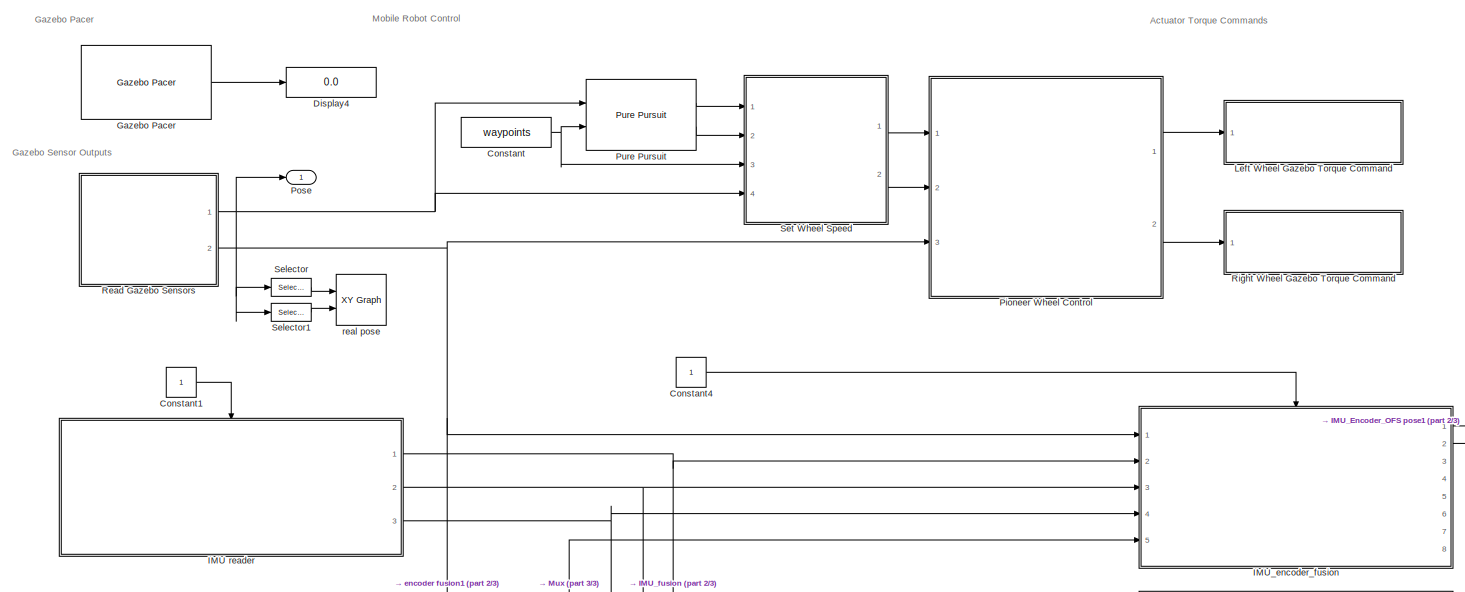
[diagram: root canvas - part 1/3, full width, top band]
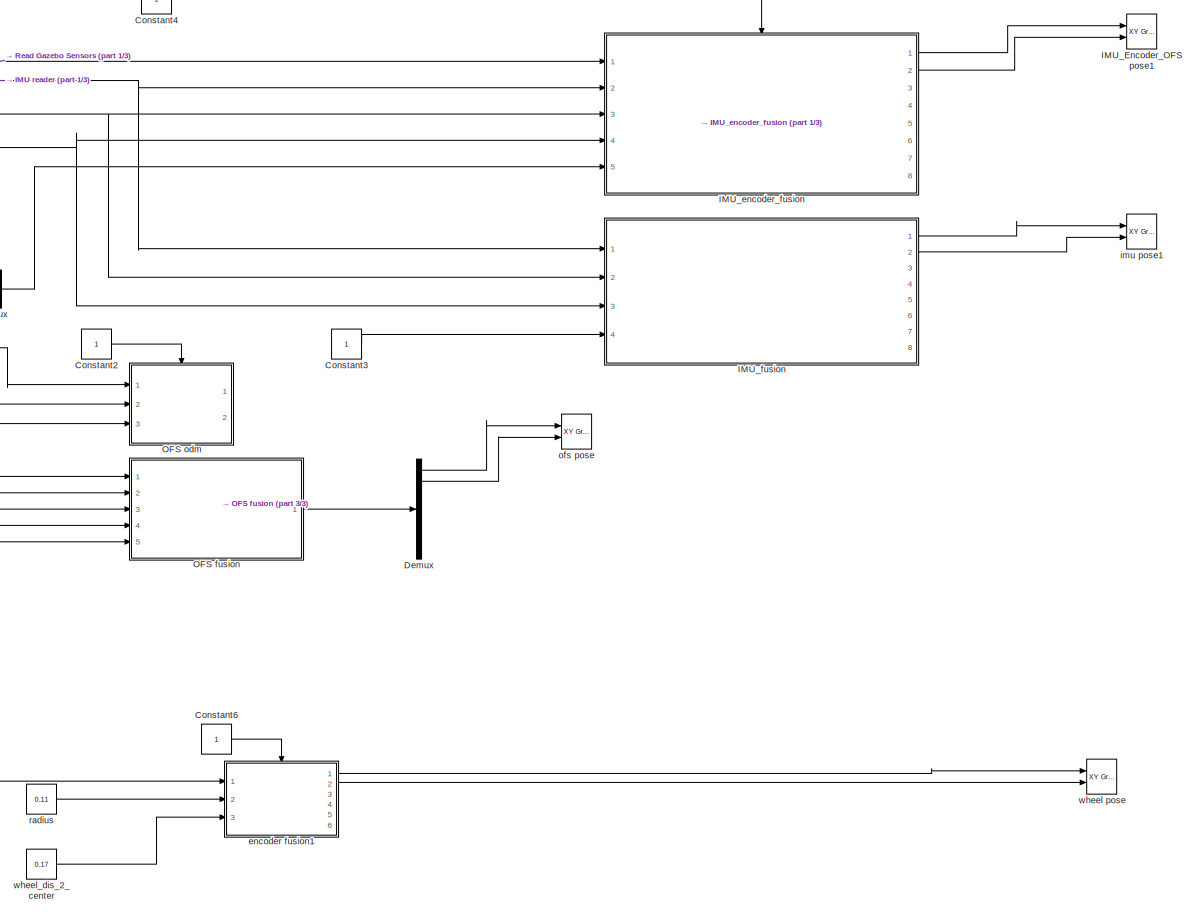
[diagram: root canvas - part 2/3, central region]
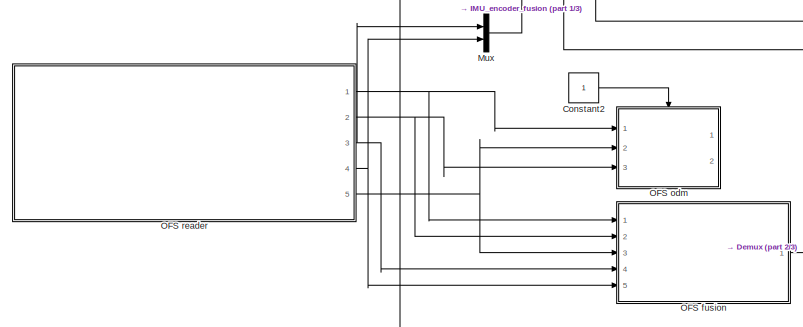
[diagram: root canvas - part 3/3, middle left region]
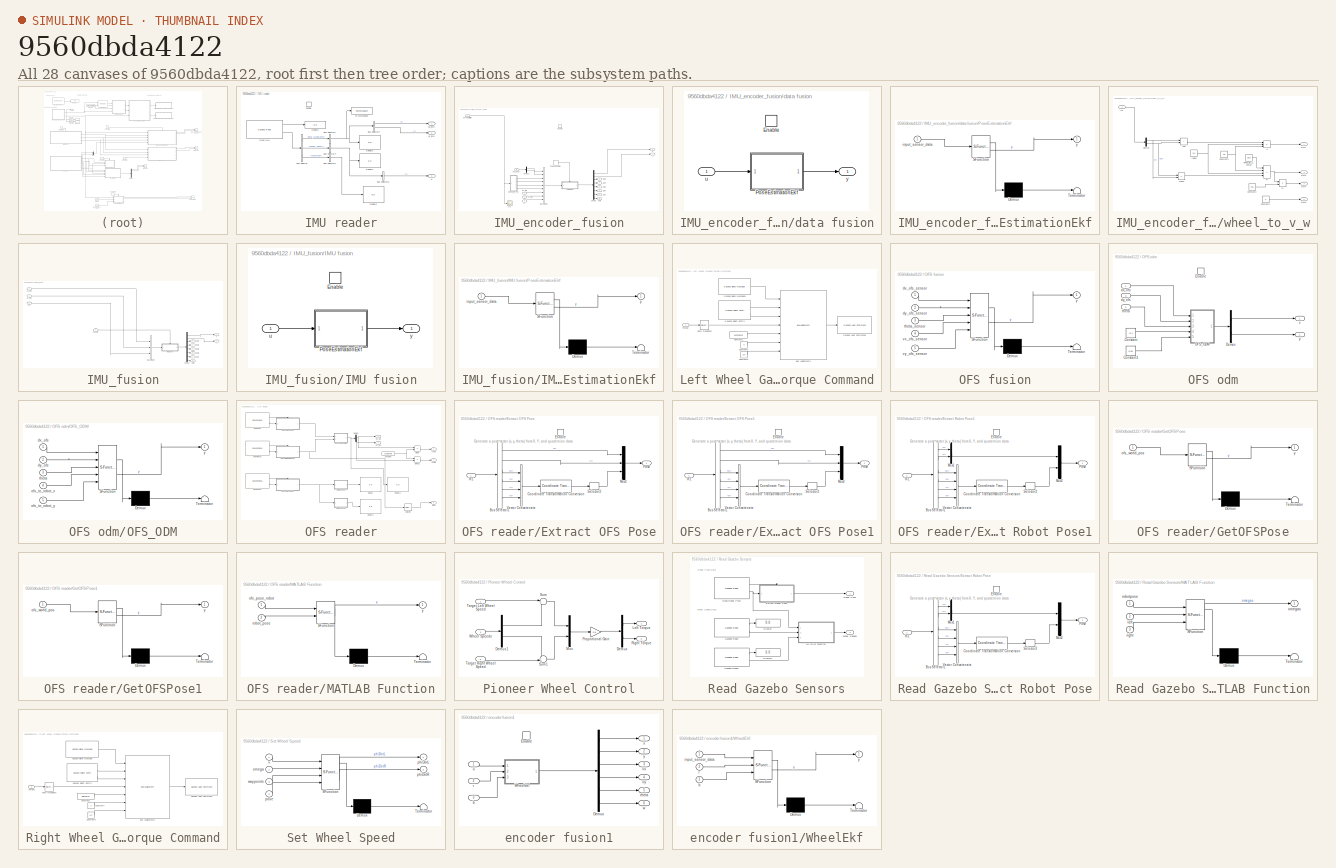
[diagram: thumbnail index - all 28 canvases of the model, root first then tree order]
MODEL slx_9560dbda4122
KIND model
CONFIG AbsTol = auto
CONFIG EnableMultiTasking = off
CONFIG FixedStep = auto
CONFIG MaxStep = auto
CONFIG MinStep = auto
CONFIG RelTol = 1e-3
CONFIG SampleTimeConstraint = Unconstrained
CONFIG SolverName = VariableStepAuto
CONFIG StartTime = 0.0
CONFIG StopTime = 10.0
WORKSPACE source: mxarray member
WORKSPACE f = -1
BLOCK [Constant] Constant
  Value = waypoints
BLOCK [Constant] Constant1
BLOCK [Constant] Constant2
BLOCK [Constant] Constant3
BLOCK [Constant] Constant4
BLOCK [Constant] Constant6
BLOCK [Demux] Demux
  Outputs = 8
  Ports = [1, 8]
BLOCK [Display] Display4
  Decimation = 1
  Ports = [1]
BLOCK [Reference] Gazebo Pacer  REF=robotgazebolib/Gazebo Pacer
  Ports = [0, 1]
  SourceBlock = robotgazebolib/Gazebo Pacer
  SourceProductName = Robotics System Toolbox
  SourceType = Gazebo Pacer
BLOCK [SubSystem] IMU reader
  Ports = [0, 3, 1]
  RequestExecContextInheritance = off
BLOCK [BusSelector] IMU reader/Bus Selector
  OutputSignals = linear_acceleration,angular_velocity,orientation
  Ports = [1, 3]
BLOCK [BusSelector] IMU reader/Bus Selector1
  OutputAsBus = on
  OutputSignals = x,y,z
  Ports = [1, 1]
BLOCK [BusSelector] IMU reader/Bus Selector2
  OutputAsBus = on
  OutputSignals = x,y,z
  Ports = [1, 1]
BLOCK [BusSelector] IMU reader/Bus Selector3
  OutputAsBus = on
  OutputSignals = w,x,y,z
  Ports = [1, 1]
BLOCK [BusSelector] IMU reader/Bus Selector4
  OutputSignals = x,y
  Ports = [1, 2]
BLOCK [BusSelector] IMU reader/Bus Selector5
  OutputSignals = z
  Ports = [1, 1]
BLOCK [Display] IMU reader/Display1
  Decimation = 1
  Ports = [1]
BLOCK [Display] IMU reader/Display2
  Decimation = 3
  Ports = [1]
BLOCK [Display] IMU reader/Display3
  Decimation = 3
  Ports = [1]
BLOCK [Display] IMU reader/Display4
  Decimation = 3
  Ports = [1]
BLOCK [EnablePort] IMU reader/Enable
  Ports = []
BLOCK [Reference] IMU reader/Read IMU  REF=robotgazebolib/Gazebo Read
  Ports = [0, 2]
  SourceBlock = robotgazebolib/Gazebo Read
  SourceProductName = Robotics System Toolbox
  SourceType = Gazebo Read
BLOCK [ToWorkspace] IMU reader/To Workspace
  Decimation = 3
  FixptAsFi = on
  MaxDataPoints = inf
  Ports = [1]
  SampleTime = -1
  SaveFormat = Timeseries
  VariableName = acc
BLOCK [Outport] IMU reader/ax_imu
BLOCK [Outport] IMU reader/ay_imu
  Port = 2
BLOCK [Outport] IMU reader/w
  Port = 3
BLOCK [Reference] IMU_Encoder_OFS pose1  REF=simulink/Sinks/XY Graph
  Ports = [2]
  SourceBlock = simulink/Sinks/XY Graph
  SourceProductBaseCode = SL
  SourceType = XY scope.
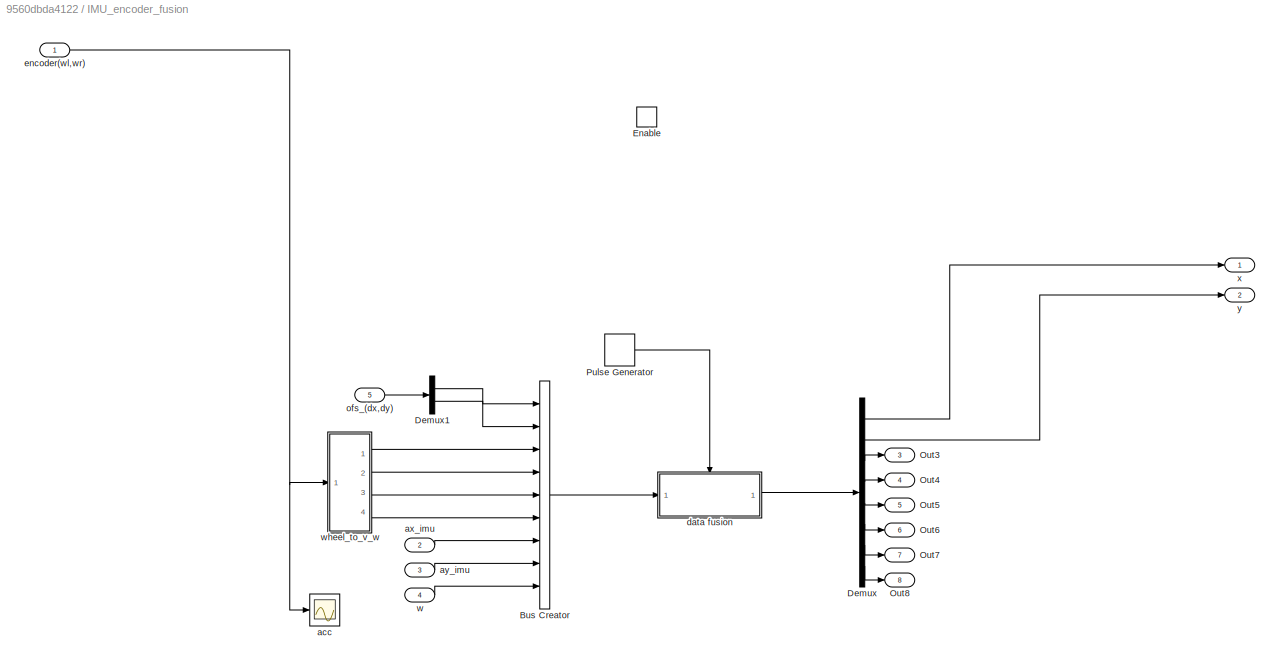
BLOCK [SubSystem] IMU_encoder_fusion
  Ports = [5, 8, 1]
  RequestExecContextInheritance = off
BLOCK [BusCreator] IMU_encoder_fusion/Bus Creator
  DisplayOption = bar
  InheritFromInputs = on
  Inputs = 9
  Ports = [9, 1]
BLOCK [Demux] IMU_encoder_fusion/Demux
  Outputs = 8
  Ports = [1, 8]
BLOCK [Demux] IMU_encoder_fusion/Demux1
  Outputs = 2
  Ports = [1, 2]
BLOCK [EnablePort] IMU_encoder_fusion/Enable
  Ports = []
BLOCK [Outport] IMU_encoder_fusion/Out3
  Port = 3
BLOCK [Outport] IMU_encoder_fusion/Out4
  Port = 4
BLOCK [Outport] IMU_encoder_fusion/Out5
  Port = 5
BLOCK [Outport] IMU_encoder_fusion/Out6
  Port = 6
BLOCK [Outport] IMU_encoder_fusion/Out7
  Port = 7
BLOCK [Outport] IMU_encoder_fusion/Out8
  Port = 8
BLOCK [DiscretePulseGenerator] IMU_encoder_fusion/Pulse Generator
  Period = 0.01
  Ports = [0, 1]
  PulseType = Time based
  PulseWidth = 50
BLOCK [Scope] IMU_encoder_fusion/acc
  Floating = off
  NumInputPorts = 1
  Ports = [1]
  ScopeSpecificationString = Simulink.scopes.TimeScopeBlockCfg('CurrentConfiguration', extmgr.ConfigurationSet(extmgr.Configuration('Core','General UI',true),extmgr.Configuration('Core','Source UI',true),extmgr.Configuration('Sources','WiredSimulink',true,'DataLoggingVariableName','ScopeData1'),extmgr.Configuration('Visuals','Time Domain',true,'SerializedDisplays',{struct('MinYLimReal','-0.27519','MaxYLimReal','12.50547','YLa...<+1425ch>
BLOCK [Inport] IMU_encoder_fusion/ax_imu
  Port = 2
BLOCK [Inport] IMU_encoder_fusion/ay_imu
  Port = 3
BLOCK [SubSystem] IMU_encoder_fusion/data fusion
  Ports = [1, 1, 1]
  RequestExecContextInheritance = off
  TreatAsAtomicUnit = on
BLOCK [EnablePort] IMU_encoder_fusion/data fusion/Enable
  Ports = []
BLOCK [SubSystem] IMU_encoder_fusion/data fusion/PoseEstimationEkf
  ErrorFcn = Stateflow.Translate.translate
  PermitHierarchicalResolution = ExplicitOnly
  Ports = [1, 1]
  RequestExecContextInheritance = off
  SFBlockType = MATLAB Function
  TreatAsAtomicUnit = on
BLOCK [Demux] IMU_encoder_fusion/data fusion/PoseEstimationEkf/ Demux 
  Outputs = 1
  Ports = [1, 1]
BLOCK [S-Function] IMU_encoder_fusion/data fusion/PoseEstimationEkf/ SFunction 
  EnableBusSupport = on
  FunctionName = sf_sfun
  PortCounts = [1 2]
  Ports = [1, 2]
  SFcnIsStateOwnerBlock = off
  SFunctionDeploymentMode = off
  Tag = Stateflow S-Function 3
BLOCK [Terminator] IMU_encoder_fusion/data fusion/PoseEstimationEkf/ Terminator 
BLOCK [Inport] IMU_encoder_fusion/data fusion/PoseEstimationEkf/input_sensor_data
BLOCK [Outport] IMU_encoder_fusion/data fusion/PoseEstimationEkf/y
BLOCK [Inport] IMU_encoder_fusion/data fusion/u
BLOCK [Outport] IMU_encoder_fusion/data fusion/y
BLOCK [Inport] IMU_encoder_fusion/encoder(wl,wr)
BLOCK [Inport] IMU_encoder_fusion/ofs_(dx,dy)
  Port = 5
BLOCK [Inport] IMU_encoder_fusion/w
  Port = 4
BLOCK [SubSystem] IMU_encoder_fusion/wheel_to_v_w
  Ports = [1, 4]
  RequestExecContextInheritance = off
BLOCK [Sum] IMU_encoder_fusion/wheel_to_v_w/Add
  IconShape = rectangular
  Ports = [2, 1]
BLOCK [Constant] IMU_encoder_fusion/wheel_to_v_w/Constant1
  Value = 0
BLOCK [Constant] IMU_encoder_fusion/wheel_to_v_w/Constant2
  Value = 0.01
BLOCK [Constant] IMU_encoder_fusion/wheel_to_v_w/Constant3
  Value = 0.5
BLOCK [Demux] IMU_encoder_fusion/wheel_to_v_w/Demux
  Outputs = 2
  Ports = [1, 2]
BLOCK [Inport] IMU_encoder_fusion/wheel_to_v_w/In1
BLOCK [Sum] IMU_encoder_fusion/wheel_to_v_w/Minus
  IconShape = rectangular
  Inputs = +-
  Ports = [2, 1]
BLOCK [Outport] IMU_encoder_fusion/wheel_to_v_w/Out1
BLOCK [Outport] IMU_encoder_fusion/wheel_to_v_w/Out2
  Port = 4
BLOCK [Outport] IMU_encoder_fusion/wheel_to_v_w/Out3
  Port = 2
BLOCK [Outport] IMU_encoder_fusion/wheel_to_v_w/Out4
  Port = 3
BLOCK [Constant] IMU_encoder_fusion/wheel_to_v_w/radius
  Value = 0.11
BLOCK [Product] IMU_encoder_fusion/wheel_to_v_w/v
  Inputs = 3
  Ports = [3, 1]
BLOCK [Product] IMU_encoder_fusion/wheel_to_v_w/v1
  Ports = [2, 1]
BLOCK [Product] IMU_encoder_fusion/wheel_to_v_w/w
  Inputs = 4
  Ports = [4, 1]
BLOCK [Constant] IMU_encoder_fusion/wheel_to_v_w/wheel_dis_2_center
  Value = 1/0.17
BLOCK [Outport] IMU_encoder_fusion/x
BLOCK [Outport] IMU_encoder_fusion/y
  Port = 2
BLOCK [SubSystem] IMU_fusion
  Ports = [4, 8]
  RequestExecContextInheritance = off
BLOCK [BusCreator] IMU_fusion/Bus Creator
  DisplayOption = bar
  InheritFromInputs = on
  Inputs = 3
  Ports = [3, 1]
BLOCK [Demux] IMU_fusion/Demux
  Outputs = 8
  Ports = [1, 8]
BLOCK [Inport] IMU_fusion/Enable
  Port = 4
BLOCK [SubSystem] IMU_fusion/IMU fusion
  Ports = [1, 1, 1]
  RequestExecContextInheritance = off
  TreatAsAtomicUnit = on
BLOCK [EnablePort] IMU_fusion/IMU fusion/Enable
  Ports = []
BLOCK [SubSystem] IMU_fusion/IMU fusion/PoseEstimationEkf
  ErrorFcn = Stateflow.Translate.translate
  PermitHierarchicalResolution = ExplicitOnly
  Ports = [1, 1]
  RequestExecContextInheritance = off
  SFBlockType = MATLAB Function
  TreatAsAtomicUnit = on
BLOCK [Demux] IMU_fusion/IMU fusion/PoseEstimationEkf/ Demux 
  Outputs = 1
  Ports = [1, 1]
BLOCK [S-Function] IMU_fusion/IMU fusion/PoseEstimationEkf/ SFunction 
  EnableBusSupport = on
  FunctionName = sf_sfun
  PortCounts = [1 2]
  Ports = [1, 2]
  SFcnIsStateOwnerBlock = off
  SFunctionDeploymentMode = off
  Tag = Stateflow S-Function 5
BLOCK [Terminator] IMU_fusion/IMU fusion/PoseEstimationEkf/ Terminator 
BLOCK [Inport] IMU_fusion/IMU fusion/PoseEstimationEkf/input_sensor_data
BLOCK [Outport] IMU_fusion/IMU fusion/PoseEstimationEkf/y
BLOCK [Inport] IMU_fusion/IMU fusion/u
BLOCK [Outport] IMU_fusion/IMU fusion/y
BLOCK [Outport] IMU_fusion/Out3
  Port = 3
BLOCK [Outport] IMU_fusion/Out4
  Port = 4
BLOCK [Outport] IMU_fusion/Out5
  Port = 5
BLOCK [Outport] IMU_fusion/Out6
  Port = 6
BLOCK [Outport] IMU_fusion/Out7
  Port = 7
BLOCK [Outport] IMU_fusion/Out8
  Port = 8
BLOCK [Inport] IMU_fusion/ax_imu
BLOCK [Inport] IMU_fusion/ay_imu
  Port = 2
BLOCK [Inport] IMU_fusion/w
  Port = 3
BLOCK [Outport] IMU_fusion/x
BLOCK [Outport] IMU_fusion/y
  Port = 2
BLOCK [SubSystem] Left Wheel Gazebo Torque Command
  Ports = [1]
  RequestExecContextInheritance = off
BLOCK [BusAssignment] Left Wheel Gazebo Torque Command/Bus Assignment1
  AssignedSignals = model_name,joint_name,effort,index,duration.seconds,duration.nano_seconds
  Ports = [7, 1]
BLOCK [Constant] Left Wheel Gazebo Torque Command/Constant1
  Value = uint32(0)
BLOCK [Constant] Left Wheel Gazebo Torque Command/Constant4
  Value = 0
BLOCK [Constant] Left Wheel Gazebo Torque Command/Constant5
  Value = 1e7
BLOCK [Reference] Left Wheel Gazebo Torque Command/Gazebo Apply Command1  REF=robotgazebolib/Gazebo Apply Command
  Ports = [1]
  SourceBlock = robotgazebolib/Gazebo Apply Command
  SourceProductName = Robotics System Toolbox
  SourceType = Gazebo Apply Command
BLOCK [Reference] Left Wheel Gazebo Torque Command/Gazebo Blank Message1  REF=robotgazebolib/Gazebo Blank Message
  Ports = [0, 1]
  SourceBlock = robotgazebolib/Gazebo Blank Message
  SourceProductName = Robotics System Toolbox
  SourceType = Gazebo Blank Message
BLOCK [Reference] Left Wheel Gazebo Torque Command/Gazebo Select Entity1  REF=robotgazebolib/Gazebo Select Entity
  Ports = [0, 2]
  SourceBlock = robotgazebolib/Gazebo Select Entity
  SourceProductName = Robotics System Toolbox
  SourceType = Gazebo Select Entity
BLOCK [RateTransition] Left Wheel Gazebo Torque Command/Rate Transition2
BLOCK [Inport] Left Wheel Gazebo Torque Command/Torque
BLOCK [Mux] Mux
  DisplayOption = bar
  Inputs = 2
  Ports = [2, 1]
BLOCK [SubSystem] OFS fusion
  ErrorFcn = Stateflow.Translate.translate
  PermitHierarchicalResolution = ExplicitOnly
  Ports = [5, 1]
  RequestExecContextInheritance = off
  SFBlockType = MATLAB Function
  TreatAsAtomicUnit = on
BLOCK [Demux] OFS fusion/ Demux 
  Outputs = 1
  Ports = [1, 1]
BLOCK [S-Function] OFS fusion/ SFunction 
  EnableBusSupport = on
  FunctionName = sf_sfun
  PortCounts = [5 2]
  Ports = [5, 2]
  SFcnIsStateOwnerBlock = off
  SFunctionDeploymentMode = off
  Tag = Stateflow S-Function 7
BLOCK [Terminator] OFS fusion/ Terminator 
BLOCK [Inport] OFS fusion/dx_ofs_sensor
BLOCK [Inport] OFS fusion/dy_ofs_sensor
  Port = 2
BLOCK [Inport] OFS fusion/theta_sensor
  Port = 3
BLOCK [Inport] OFS fusion/vx_ofs_sensor
  Port = 4
BLOCK [Inport] OFS fusion/vy_ofs_sensor
  Port = 5
BLOCK [Outport] OFS fusion/y
BLOCK [SubSystem] OFS odm
  Ports = [3, 2, 1]
  RequestExecContextInheritance = off
BLOCK [Constant] OFS odm/Constant
  Value = -0.1
BLOCK [Constant] OFS odm/Constant1
  Value = 0.05
BLOCK [Demux] OFS odm/Demux
  Outputs = 2
  Ports = [1, 2]
BLOCK [EnablePort] OFS odm/Enable
  Ports = []
BLOCK [SubSystem] OFS odm/OFS_ODM
  ErrorFcn = Stateflow.Translate.translate
  PermitHierarchicalResolution = ExplicitOnly
  Ports = [5, 1]
  RequestExecContextInheritance = off
  SFBlockType = MATLAB Function
  TreatAsAtomicUnit = on
BLOCK [Demux] OFS odm/OFS_ODM/ Demux 
  Outputs = 1
  Ports = [1, 1]
BLOCK [S-Function] OFS odm/OFS_ODM/ SFunction 
  EnableBusSupport = on
  FunctionName = sf_sfun
  PortCounts = [5 2]
  Ports = [5, 2]
  SFcnIsStateOwnerBlock = off
  SFunctionDeploymentMode = off
  Tag = Stateflow S-Function 6
BLOCK [Terminator] OFS odm/OFS_ODM/ Terminator 
BLOCK [Inport] OFS odm/OFS_ODM/dx_ofs
BLOCK [Inport] OFS odm/OFS_ODM/dy_ofs
  Port = 2
BLOCK [Inport] OFS odm/OFS_ODM/ofs_to_robot_x
  Port = 4
BLOCK [Inport] OFS odm/OFS_ODM/ofs_to_robot_y
  Port = 5
BLOCK [Inport] OFS odm/OFS_ODM/theta
  Port = 3
BLOCK [Outport] OFS odm/OFS_ODM/y
BLOCK [Inport] OFS odm/dx_ofs
BLOCK [Inport] OFS odm/dy_ofs
  Port = 3
BLOCK [Inport] OFS odm/theta
  Port = 2
BLOCK [Outport] OFS odm/x
BLOCK [Outport] OFS odm/y
  Port = 2
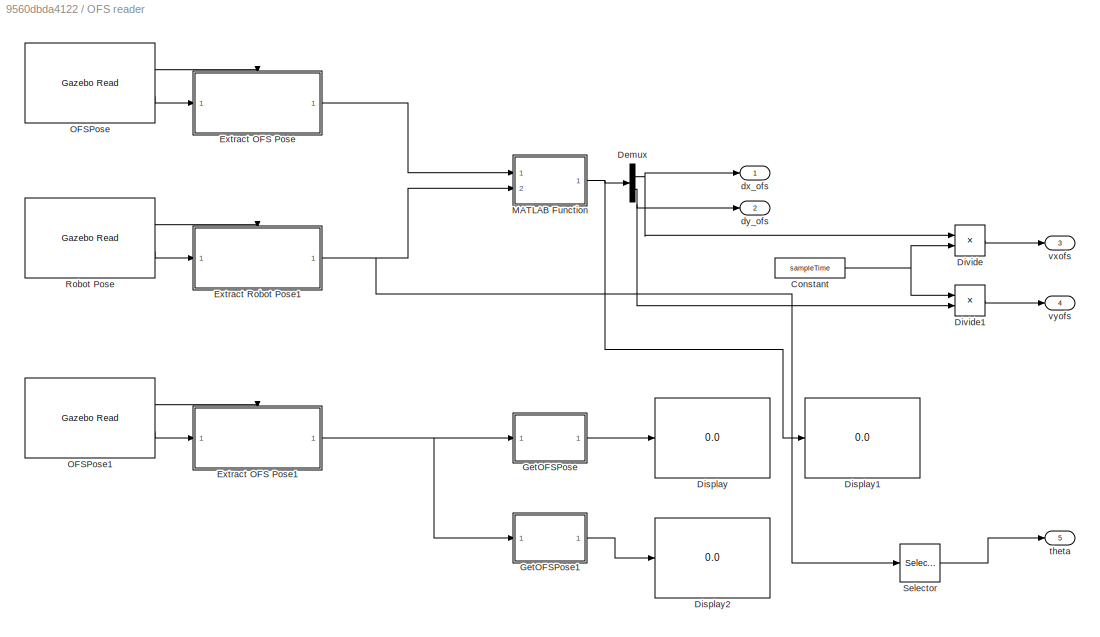
BLOCK [SubSystem] OFS reader
  Ports = [0, 5]
  RequestExecContextInheritance = off
BLOCK [Constant] OFS reader/Constant
  Value = sampleTime
BLOCK [Demux] OFS reader/Demux
  Outputs = 2
  Ports = [1, 2]
BLOCK [Display] OFS reader/Display
  Decimation = 3
  Ports = [1]
BLOCK [Display] OFS reader/Display1
  Decimation = 3
  Ports = [1]
BLOCK [Display] OFS reader/Display2
  Decimation = 3
  Ports = [1]
BLOCK [Product] OFS reader/Divide
  Inputs = */
  Ports = [2, 1]
BLOCK [Product] OFS reader/Divide1
  Inputs = /*
  Ports = [2, 1]
BLOCK [SubSystem] OFS reader/Extract OFS Pose
  Ports = [1, 1, 1]
  RequestExecContextInheritance = off
BLOCK [BusSelector] OFS reader/Extract OFS Pose/Bus Selector1
  OutputSignals = relative_pose.position.x,relative_pose.position.y,relative_pose.orientation.w,relative_pose.orientation.x,relative_pose.orientation.y,relative_pose.orientation.z
  Ports = [1, 6]
BLOCK [Reference] OFS reader/Extract OFS Pose/Coordinate Transformation Conversion  REF=robotcorelib/Coordinate Transformation Conversion
  Ports = [1, 1]
  SourceBlock = robotcorelib/Coordinate Transformation Conversion
  SourceProductName = Robotics System Toolbox
  SourceType = robotics.slcore.internal.block.CoordinateTransformationConversion
BLOCK [EnablePort] OFS reader/Extract OFS Pose/Enable
  Ports = []
BLOCK [Inport] OFS reader/Extract OFS Pose/In1
BLOCK [Mux] OFS reader/Extract OFS Pose/Mux2
  DisplayOption = bar
  Inputs = 3
  Ports = [3, 1]
BLOCK [Outport] OFS reader/Extract OFS Pose/Pose
  VectorParamsAs1DForOutWhenUnconnected = off
BLOCK [Selector] OFS reader/Extract OFS Pose/Selector2
  IndexOptions = Index vector (dialog)
  Indices = 1
  InputPortWidth = 3
  OutputSizes = 1
  Ports = [1, 1]
BLOCK [Concatenate] OFS reader/Extract OFS Pose/Vector Concatenate
  NumInputs = 4
  Ports = [4, 1]
BLOCK [SubSystem] OFS reader/Extract OFS Pose1
  Ports = [1, 1, 1]
  RequestExecContextInheritance = off
BLOCK [BusSelector] OFS reader/Extract OFS Pose1/Bus Selector1
  OutputSignals = position.x,position.y,orientation.w,orientation.x,orientation.y,orientation.z
  Ports = [1, 6]
BLOCK [Reference] OFS reader/Extract OFS Pose1/Coordinate Transformation Conversion  REF=robotcorelib/Coordinate Transformation Conversion
  Ports = [1, 1]
  SourceBlock = robotcorelib/Coordinate Transformation Conversion
  SourceProductName = Robotics System Toolbox
  SourceType = robotics.slcore.internal.block.CoordinateTransformationConversion
BLOCK [EnablePort] OFS reader/Extract OFS Pose1/Enable
  Ports = []
BLOCK [Inport] OFS reader/Extract OFS Pose1/In1
BLOCK [Mux] OFS reader/Extract OFS Pose1/Mux2
  DisplayOption = bar
  Inputs = 3
  Ports = [3, 1]
BLOCK [Outport] OFS reader/Extract OFS Pose1/Pose
  VectorParamsAs1DForOutWhenUnconnected = off
BLOCK [Selector] OFS reader/Extract OFS Pose1/Selector2
  IndexOptions = Index vector (dialog)
  Indices = 1
  InputPortWidth = 3
  OutputSizes = 1
  Ports = [1, 1]
BLOCK [Concatenate] OFS reader/Extract OFS Pose1/Vector Concatenate
  NumInputs = 4
  Ports = [4, 1]
BLOCK [SubSystem] OFS reader/Extract Robot Pose1
  Ports = [1, 1, 1]
  RequestExecContextInheritance = off
BLOCK [BusSelector] OFS reader/Extract Robot Pose1/Bus Selector1
  OutputSignals = position.x,position.y,orientation.w,orientation.x,orientation.y,orientation.z
  Ports = [1, 6]
BLOCK [Reference] OFS reader/Extract Robot Pose1/Coordinate Transformation Conversion  REF=robotcorelib/Coordinate Transformation Conversion
  Ports = [1, 1]
  SourceBlock = robotcorelib/Coordinate Transformation Conversion
  SourceProductName = Robotics System Toolbox
  SourceType = robotics.slcore.internal.block.CoordinateTransformationConversion
BLOCK [EnablePort] OFS reader/Extract Robot Pose1/Enable
  Ports = []
BLOCK [Inport] OFS reader/Extract Robot Pose1/In1
BLOCK [Mux] OFS reader/Extract Robot Pose1/Mux1
  DisplayOption = bar
  Inputs = 2
  Ports = [2, 1]
BLOCK [Mux] OFS reader/Extract Robot Pose1/Mux2
  DisplayOption = bar
  Inputs = 2
  Ports = [2, 1]
BLOCK [Outport] OFS reader/Extract Robot Pose1/Pose
  VectorParamsAs1DForOutWhenUnconnected = off
BLOCK [Selector] OFS reader/Extract Robot Pose1/Selector2
  IndexOptions = Index vector (dialog)
  Indices = 1
  InputPortWidth = 3
  OutputSizes = 1
  Ports = [1, 1]
BLOCK [Concatenate] OFS reader/Extract Robot Pose1/Vector Concatenate
  NumInputs = 4
  Ports = [4, 1]
BLOCK [SubSystem] OFS reader/GetOFSPose
  ErrorFcn = Stateflow.Translate.translate
  PermitHierarchicalResolution = ExplicitOnly
  Ports = [1, 1]
  RequestExecContextInheritance = off
  SFBlockType = MATLAB Function
  TreatAsAtomicUnit = on
BLOCK [Demux] OFS reader/GetOFSPose/ Demux 
  Outputs = 1
  Ports = [1, 1]
BLOCK [S-Function] OFS reader/GetOFSPose/ SFunction 
  EnableBusSupport = on
  FunctionName = sf_sfun
  PortCounts = [1 2]
  Ports = [1, 2]
  SFcnIsStateOwnerBlock = off
  SFunctionDeploymentMode = off
  Tag = Stateflow S-Function 9
BLOCK [Terminator] OFS reader/GetOFSPose/ Terminator 
BLOCK [Inport] OFS reader/GetOFSPose/ofs_world_pos
BLOCK [Outport] OFS reader/GetOFSPose/y
BLOCK [SubSystem] OFS reader/GetOFSPose1
  ErrorFcn = Stateflow.Translate.translate
  PermitHierarchicalResolution = ExplicitOnly
  Ports = [1, 1]
  RequestExecContextInheritance = off
  SFBlockType = MATLAB Function
  TreatAsAtomicUnit = on
BLOCK [Demux] OFS reader/GetOFSPose1/ Demux 
  Outputs = 1
  Ports = [1, 1]
BLOCK [S-Function] OFS reader/GetOFSPose1/ SFunction 
  EnableBusSupport = on
  FunctionName = sf_sfun
  PortCounts = [1 2]
  Ports = [1, 2]
  SFcnIsStateOwnerBlock = off
  SFunctionDeploymentMode = off
  Tag = Stateflow S-Function 10
BLOCK [Terminator] OFS reader/GetOFSPose1/ Terminator 
BLOCK [Inport] OFS reader/GetOFSPose1/ofs_world_pos
BLOCK [Outport] OFS reader/GetOFSPose1/y
BLOCK [SubSystem] OFS reader/MATLAB Function
  ErrorFcn = Stateflow.Translate.translate
  PermitHierarchicalResolution = ExplicitOnly
  Ports = [2, 1]
  RequestExecContextInheritance = off
  SFBlockType = MATLAB Function
  TreatAsAtomicUnit = on
BLOCK [Demux] OFS reader/MATLAB Function/ Demux 
  Outputs = 1
  Ports = [1, 1]
BLOCK [S-Function] OFS reader/MATLAB Function/ SFunction 
  EnableBusSupport = on
  FunctionName = sf_sfun
  PortCounts = [2 2]
  Ports = [2, 2]
  SFcnIsStateOwnerBlock = off
  SFunctionDeploymentMode = off
  Tag = Stateflow S-Function 8
BLOCK [Terminator] OFS reader/MATLAB Function/ Terminator 
BLOCK [Inport] OFS reader/MATLAB Function/ofs_pose_robot
BLOCK [Inport] OFS reader/MATLAB Function/robot_pose
  Port = 2
BLOCK [Outport] OFS reader/MATLAB Function/y
BLOCK [Reference] OFS reader/OFSPose  REF=robotgazebolib/Gazebo Read
  Ports = [0, 2]
  SourceBlock = robotgazebolib/Gazebo Read
  SourceProductName = Robotics System Toolbox
  SourceType = Gazebo Read
BLOCK [Reference] OFS reader/OFSPose1  REF=robotgazebolib/Gazebo Read
  Ports = [0, 2]
  SourceBlock = robotgazebolib/Gazebo Read
  SourceProductName = Robotics System Toolbox
  SourceType = Gazebo Read
BLOCK [Reference] OFS reader/Robot Pose  REF=robotgazebolib/Gazebo Read
  Ports = [0, 2]
  SourceBlock = robotgazebolib/Gazebo Read
  SourceProductName = Robotics System Toolbox
  SourceType = Gazebo Read
BLOCK [Selector] OFS reader/Selector
  IndexOptions = Index vector (dialog)
  Indices = [3]
  InputPortWidth = 3
  OutputSizes = 1
  Ports = [1, 1]
BLOCK [Outport] OFS reader/dx_ofs
BLOCK [Outport] OFS reader/dy_ofs
  Port = 2
BLOCK [Outport] OFS reader/theta
  Port = 5
BLOCK [Outport] OFS reader/vxofs
  Port = 3
BLOCK [Outport] OFS reader/vyofs
  Port = 4
BLOCK [SubSystem] Pioneer Wheel Control
  Ports = [3, 2]
  RequestExecContextInheritance = off
BLOCK [Demux] Pioneer Wheel Control/Demux
  Outputs = 2
  Ports = [1, 2]
BLOCK [Demux] Pioneer Wheel Control/Demux1
  Outputs = 2
  Ports = [1, 2]
BLOCK [Outport] Pioneer Wheel Control/Left Torque
BLOCK [Mux] Pioneer Wheel Control/Mux
  DisplayOption = bar
  Inputs = 2
  Ports = [2, 1]
BLOCK [Gain] Pioneer Wheel Control/Proportional Gain
  Gain = 0.8
BLOCK [Outport] Pioneer Wheel Control/Right Torque
  Port = 2
BLOCK [Sum] Pioneer Wheel Control/Sum
  Inputs = |+-
  Ports = [2, 1]
BLOCK [Sum] Pioneer Wheel Control/Sum1
  Inputs = -+|
  Ports = [2, 1]
BLOCK [Inport] Pioneer Wheel Control/Target Left Wheel Speed
BLOCK [Inport] Pioneer Wheel Control/Target Right Wheel Speed
  Port = 2
BLOCK [Inport] Pioneer Wheel Control/Wheel Speeds
  Port = 3
BLOCK [Outport] Pose
BLOCK [Reference] Pure Pursuit  REF=robotalgslib/Pure Pursuit
  Ports = [2, 2]
  SourceBlock = robotalgslib/Pure Pursuit
  SourceProductBaseCode = NV,RO
  SourceType = nav.slalgs.internal.PurePursuit
BLOCK [SubSystem] Read Gazebo Sensors
  Ports = [0, 2]
  RequestExecContextInheritance = off
BLOCK [Display] Read Gazebo Sensors/Display
  Decimation = 1
  Ports = [1]
BLOCK [Display] Read Gazebo Sensors/Display1
  Decimation = 1
  Ports = [1]
BLOCK [SubSystem] Read Gazebo Sensors/Extract Robot Pose
  Ports = [1, 1, 1]
  RequestExecContextInheritance = off
BLOCK [BusSelector] Read Gazebo Sensors/Extract Robot Pose/Bus Selector1
  OutputSignals = position.x,position.y,orientation.w,orientation.x,orientation.y,orientation.z
  Ports = [1, 6]
BLOCK [Reference] Read Gazebo Sensors/Extract Robot Pose/Coordinate Transformation Conversion  REF=robotcorelib/Coordinate Transformation Conversion
  Ports = [1, 1]
  SourceBlock = robotcorelib/Coordinate Transformation Conversion
  SourceProductName = Robotics System Toolbox
  SourceType = robotics.slcore.internal.block.CoordinateTransformationConversion
BLOCK [EnablePort] Read Gazebo Sensors/Extract Robot Pose/Enable
  Ports = []
BLOCK [Inport] Read Gazebo Sensors/Extract Robot Pose/In1
BLOCK [Mux] Read Gazebo Sensors/Extract Robot Pose/Mux1
  DisplayOption = bar
  Inputs = 2
  Ports = [2, 1]
BLOCK [Mux] Read Gazebo Sensors/Extract Robot Pose/Mux2
  DisplayOption = bar
  Inputs = 2
  Ports = [2, 1]
BLOCK [Outport] Read Gazebo Sensors/Extract Robot Pose/Pose
  VectorParamsAs1DForOutWhenUnconnected = off
BLOCK [Selector] Read Gazebo Sensors/Extract Robot Pose/Selector2
  IndexOptions = Index vector (dialog)
  Indices = 1
  InputPortWidth = 3
  OutputSizes = 1
  Ports = [1, 1]
BLOCK [Concatenate] Read Gazebo Sensors/Extract Robot Pose/Vector Concatenate
  NumInputs = 4
  Ports = [4, 1]
BLOCK [Reference] Read Gazebo Sensors/Gazebo Read  REF=robotgazebolib/Gazebo Read
  Ports = [0, 2]
  SourceBlock = robotgazebolib/Gazebo Read
  SourceProductName = Robotics System Toolbox
  SourceType = Gazebo Read
BLOCK [Reference] Read Gazebo Sensors/Gazebo Read1  REF=robotgazebolib/Gazebo Read
  Ports = [0, 2]
  SourceBlock = robotgazebolib/Gazebo Read
  SourceProductName = Robotics System Toolbox
  SourceType = Gazebo Read
BLOCK [SubSystem] Read Gazebo Sensors/MATLAB Function
  ErrorFcn = Stateflow.Translate.translate
  PermitHierarchicalResolution = ExplicitOnly
  Ports = [3, 1]
  RequestExecContextInheritance = off
  SFBlockType = MATLAB Function
  TreatAsAtomicUnit = on
BLOCK [Demux] Read Gazebo Sensors/MATLAB Function/ Demux 
  Outputs = 1
  Ports = [1, 1]
BLOCK [S-Function] Read Gazebo Sensors/MATLAB Function/ SFunction 
  EnableBusSupport = on
  FunctionName = sf_sfun
  PortCounts = [3 2]
  Ports = [3, 2]
  SFcnIsStateOwnerBlock = off
  SFunctionDeploymentMode = off
  Tag = Stateflow S-Function 1
BLOCK [Terminator] Read Gazebo Sensors/MATLAB Function/ Terminator 
BLOCK [Inport] Read Gazebo Sensors/MATLAB Function/left
  Port = 2
BLOCK [Outport] Read Gazebo Sensors/MATLAB Function/omegas
BLOCK [Inport] Read Gazebo Sensors/MATLAB Function/right
  Port = 3
BLOCK [Inport] Read Gazebo Sensors/MATLAB Function/robotpose
BLOCK [Reference] Read Gazebo Sensors/Read Robot Pose  REF=robotgazebolib/Gazebo Read
  Ports = [0, 2]
  SourceBlock = robotgazebolib/Gazebo Read
  SourceProductName = Robotics System Toolbox
  SourceType = Gazebo Read
BLOCK [Outport] Read Gazebo Sensors/Robot Pose
BLOCK [Outport] Read Gazebo Sensors/Wheel Speeds
  Port = 2
BLOCK [SubSystem] Right Wheel Gazebo Torque Command
  Ports = [1]
  RequestExecContextInheritance = off
BLOCK [BusAssignment] Right Wheel Gazebo Torque Command/Bus Assignment1
  AssignedSignals = model_name,joint_name,effort,index,duration.seconds,duration.nano_seconds
  Ports = [7, 1]
BLOCK [Constant] Right Wheel Gazebo Torque Command/Constant1
  Value = uint32(0)
BLOCK [Constant] Right Wheel Gazebo Torque Command/Constant4
  Value = 0
BLOCK [Constant] Right Wheel Gazebo Torque Command/Constant5
  Value = 1e7
BLOCK [Reference] Right Wheel Gazebo Torque Command/Gazebo Apply Command  REF=robotgazebolib/Gazebo Apply Command
  Ports = [1]
  SourceBlock = robotgazebolib/Gazebo Apply Command
  SourceProductName = Robotics System Toolbox
  SourceType = Gazebo Apply Command
BLOCK [Reference] Right Wheel Gazebo Torque Command/Gazebo Blank Message  REF=robotgazebolib/Gazebo Blank Message
  Ports = [0, 1]
  SourceBlock = robotgazebolib/Gazebo Blank Message
  SourceProductName = Robotics System Toolbox
  SourceType = Gazebo Blank Message
BLOCK [Reference] Right Wheel Gazebo Torque Command/Gazebo Select Entity1  REF=robotgazebolib/Gazebo Select Entity
  Ports = [0, 2]
  SourceBlock = robotgazebolib/Gazebo Select Entity
  SourceProductName = Robotics System Toolbox
  SourceType = Gazebo Select Entity
BLOCK [RateTransition] Right Wheel Gazebo Torque Command/Rate Transition2
BLOCK [Inport] Right Wheel Gazebo Torque Command/Torque
BLOCK [Selector] Selector
  IndexOptions = Index vector (dialog)
  Indices = [1]
  InputPortWidth = 3
  OutputSizes = 1
  Ports = [1, 1]
BLOCK [Selector] Selector1
  IndexOptions = Index vector (dialog)
  Indices = [2]
  InputPortWidth = 3
  OutputSizes = 1
  Ports = [1, 1]
BLOCK [SubSystem] Set Wheel Speed
  ErrorFcn = Stateflow.Translate.translate
  PermitHierarchicalResolution = ExplicitOnly
  Ports = [4, 2]
  RequestExecContextInheritance = off
  SFBlockType = MATLAB Function
  TreatAsAtomicUnit = on
BLOCK [Demux] Set Wheel Speed/ Demux 
  Outputs = 1
  Ports = [1, 1]
BLOCK [S-Function] Set Wheel Speed/ SFunction 
  EnableBusSupport = on
  FunctionName = sf_sfun
  PortCounts = [4 3]
  Ports = [4, 3]
  SFcnIsStateOwnerBlock = off
  SFunctionDeploymentMode = off
  Tag = Stateflow S-Function 2
BLOCK [Terminator] Set Wheel Speed/ Terminator 
BLOCK [Inport] Set Wheel Speed/omega
  Port = 2
BLOCK [Outport] Set Wheel Speed/phiDotL
BLOCK [Outport] Set Wheel Speed/phiDotR
  Port = 2
BLOCK [Inport] Set Wheel Speed/pose
  Port = 4
BLOCK [Inport] Set Wheel Speed/v
BLOCK [Inport] Set Wheel Speed/waypoints
  Port = 3
BLOCK [SubSystem] encoder fusion1
  Ports = [3, 6, 1]
  RequestExecContextInheritance = off
  TreatAsAtomicUnit = on
BLOCK [Demux] encoder fusion1/Demux
  Outputs = 6
  Ports = [1, 6]
BLOCK [EnablePort] encoder fusion1/Enable
  Ports = []
BLOCK [SubSystem] encoder fusion1/WheelEkf
  ErrorFcn = Stateflow.Translate.translate
  PermitHierarchicalResolution = ExplicitOnly
  Ports = [3, 1]
  RequestExecContextInheritance = off
  SFBlockType = MATLAB Function
  TreatAsAtomicUnit = on
BLOCK [Demux] encoder fusion1/WheelEkf/ Demux 
  Outputs = 1
  Ports = [1, 1]
BLOCK [S-Function] encoder fusion1/WheelEkf/ SFunction 
  EnableBusSupport = on
  FunctionName = sf_sfun
  PortCounts = [3 2]
  Ports = [3, 2]
  SFcnIsStateOwnerBlock = off
  SFunctionDeploymentMode = off
  Tag = Stateflow S-Function 4
BLOCK [Terminator] encoder fusion1/WheelEkf/ Terminator 
BLOCK [Inport] encoder fusion1/WheelEkf/b
  Port = 3
BLOCK [Inport] encoder fusion1/WheelEkf/input_sensor_data
BLOCK [Inport] encoder fusion1/WheelEkf/r
  Port = 2
BLOCK [Outport] encoder fusion1/WheelEkf/y
BLOCK [Inport] encoder fusion1/b
  Port = 3
BLOCK [Inport] encoder fusion1/r
  Port = 2
BLOCK [Outport] encoder fusion1/theta
  Port = 5
BLOCK [Inport] encoder fusion1/u
BLOCK [Outport] encoder fusion1/vx
  Port = 3
BLOCK [Outport] encoder fusion1/vy
  Port = 4
BLOCK [Outport] encoder fusion1/w
  Port = 6
BLOCK [Outport] encoder fusion1/x
BLOCK [Outport] encoder fusion1/y
  Port = 2
BLOCK [Reference] imu pose1  REF=simulink/Sinks/XY Graph
  Ports = [2]
  SourceBlock = simulink/Sinks/XY Graph
  SourceProductBaseCode = SL
  SourceType = XY scope.
BLOCK [Reference] ofs pose  REF=simulink/Sinks/XY Graph
  Ports = [2]
  SourceBlock = simulink/Sinks/XY Graph
  SourceProductBaseCode = SL
  SourceType = XY scope.
BLOCK [Constant] radius
  Value = 0.11
BLOCK [Reference] real pose  REF=simulink/Sinks/XY Graph
  Ports = [2]
  SourceBlock = simulink/Sinks/XY Graph
  SourceProductBaseCode = SL
  SourceType = XY scope.
BLOCK [Reference] wheel pose  REF=simulink/Sinks/XY Graph
  Ports = [2]
  SourceBlock = simulink/Sinks/XY Graph
  SourceProductBaseCode = SL
  SourceType = XY scope.
BLOCK [Constant] wheel_dis_2_center
  Value = 0.17
ANNOTATION (root): Actuator Torque Commands
ANNOTATION (root): Gazebo Pacer
ANNOTATION (root): Gazebo Sensor Outputs
ANNOTATION (root): Mobile Robot Control
ANNOTATION OFS reader/Extract OFS Pose: Generate a pose vector (x, y, theta) from X, Y, and quaternion data
ANNOTATION OFS reader/Extract OFS Pose1: Generate a pose vector (x, y, theta) from X, Y, and quaternion data
ANNOTATION OFS reader/Extract Robot Pose1: Generate a pose vector (x, y, theta) from X, Y, and quaternion data
ANNOTATION Read Gazebo Sensors: Robot Pose Data
ANNOTATION Read Gazebo Sensors: Wheel Speed Data
ANNOTATION Read Gazebo Sensors/Extract Robot Pose: Generate a pose vector (x, y, theta) from X, Y, and quaternion data
LINE Constant1:1 -> IMU reader:enable
LINE Constant2:1 -> OFS odm:enable
LINE Constant3:1 -> IMU_fusion:4
LINE Constant4:1 -> IMU_encoder_fusion:enable
LINE Constant6:1 -> encoder fusion1:enable
NET Constant:1 -> Pure Pursuit:2, Set Wheel Speed:3
LINE Demux:1 -> ofs pose:1
LINE Demux:2 -> ofs pose:2
LINE Gazebo Pacer:1 -> Display4:1
NET IMU reader/Bus Selector1:1 -> IMU reader/Bus Selector4:1, IMU reader/Display2:1, IMU reader/To Workspace:1
NET IMU reader/Bus Selector2:1 -> IMU reader/Bus Selector5:1, IMU reader/Display4:1
LINE IMU reader/Bus Selector3:1 -> IMU reader/Display3:1
LINE IMU reader/Bus Selector4:1 -> IMU reader/ax_imu:1
LINE IMU reader/Bus Selector4:2 -> IMU reader/ay_imu:1
LINE IMU reader/Bus Selector5:1 -> IMU reader/w:1
LINE IMU reader/Bus Selector:1 -> IMU reader/Bus Selector1:1
LINE IMU reader/Bus Selector:2 -> IMU reader/Bus Selector2:1
LINE IMU reader/Bus Selector:3 -> IMU reader/Bus Selector3:1
LINE IMU reader/Read IMU:1 -> IMU reader/Display1:1
LINE IMU reader/Read IMU:2 -> IMU reader/Bus Selector:1
NET IMU reader:1 -> IMU_encoder_fusion:2, IMU_fusion:1
NET IMU reader:2 -> IMU_encoder_fusion:3, IMU_fusion:2
NET IMU reader:3 -> IMU_encoder_fusion:4, IMU_fusion:3
LINE IMU_encoder_fusion/Bus Creator:1 -> IMU_encoder_fusion/data fusion:1
LINE IMU_encoder_fusion/Demux1:1 -> IMU_encoder_fusion/Bus Creator:1
LINE IMU_encoder_fusion/Demux1:2 -> IMU_encoder_fusion/Bus Creator:2
LINE IMU_encoder_fusion/Demux:1 -> IMU_encoder_fusion/x:1
LINE IMU_encoder_fusion/Demux:2 -> IMU_encoder_fusion/y:1
LINE IMU_encoder_fusion/Demux:3 -> IMU_encoder_fusion/Out3:1
LINE IMU_encoder_fusion/Demux:4 -> IMU_encoder_fusion/Out4:1
LINE IMU_encoder_fusion/Demux:5 -> IMU_encoder_fusion/Out5:1
LINE IMU_encoder_fusion/Demux:6 -> IMU_encoder_fusion/Out6:1
LINE IMU_encoder_fusion/Demux:7 -> IMU_encoder_fusion/Out7:1
LINE IMU_encoder_fusion/Demux:8 -> IMU_encoder_fusion/Out8:1
LINE IMU_encoder_fusion/Pulse Generator:1 -> IMU_encoder_fusion/data fusion:enable
LINE IMU_encoder_fusion/ax_imu:1 -> IMU_encoder_fusion/Bus Creator:7
LINE IMU_encoder_fusion/ay_imu:1 -> IMU_encoder_fusion/Bus Creator:8
LINE IMU_encoder_fusion/data fusion/PoseEstimationEkf:1 -> IMU_encoder_fusion/data fusion/y:1
LINE IMU_encoder_fusion/data fusion/u:1 -> IMU_encoder_fusion/data fusion/PoseEstimationEkf:1
LINE IMU_encoder_fusion/data fusion:1 -> IMU_encoder_fusion/Demux:1
NET IMU_encoder_fusion/encoder(wl,wr):1 -> IMU_encoder_fusion/acc:1, IMU_encoder_fusion/wheel_to_v_w:1
LINE IMU_encoder_fusion/ofs_(dx,dy):1 -> IMU_encoder_fusion/Demux1:1
LINE IMU_encoder_fusion/w:1 -> IMU_encoder_fusion/Bus Creator:9
LINE IMU_encoder_fusion/wheel_to_v_w/Add:1 -> IMU_encoder_fusion/wheel_to_v_w/v:1
LINE IMU_encoder_fusion/wheel_to_v_w/Constant1:1 -> IMU_encoder_fusion/wheel_to_v_w/Out3:1
LINE IMU_encoder_fusion/wheel_to_v_w/Constant2:1 -> IMU_encoder_fusion/wheel_to_v_w/v1:2
NET IMU_encoder_fusion/wheel_to_v_w/Constant3:1 -> IMU_encoder_fusion/wheel_to_v_w/v:3, IMU_encoder_fusion/wheel_to_v_w/w:2
NET IMU_encoder_fusion/wheel_to_v_w/Demux:1 -> IMU_encoder_fusion/wheel_to_v_w/Add:1, IMU_encoder_fusion/wheel_to_v_w/Minus:2
NET IMU_encoder_fusion/wheel_to_v_w/Demux:2 -> IMU_encoder_fusion/wheel_to_v_w/Add:2, IMU_encoder_fusion/wheel_to_v_w/Minus:1
LINE IMU_encoder_fusion/wheel_to_v_w/In1:1 -> IMU_encoder_fusion/wheel_to_v_w/Demux:1
LINE IMU_encoder_fusion/wheel_to_v_w/Minus:1 -> IMU_encoder_fusion/wheel_to_v_w/w:4
NET IMU_encoder_fusion/wheel_to_v_w/radius:1 -> IMU_encoder_fusion/wheel_to_v_w/v:2, IMU_encoder_fusion/wheel_to_v_w/w:3
LINE IMU_encoder_fusion/wheel_to_v_w/v1:1 -> IMU_encoder_fusion/wheel_to_v_w/Out4:1
LINE IMU_encoder_fusion/wheel_to_v_w/v:1 -> IMU_encoder_fusion/wheel_to_v_w/Out1:1
NET IMU_encoder_fusion/wheel_to_v_w/w:1 -> IMU_encoder_fusion/wheel_to_v_w/Out2:1, IMU_encoder_fusion/wheel_to_v_w/v1:1
LINE IMU_encoder_fusion/wheel_to_v_w/wheel_dis_2_center:1 -> IMU_encoder_fusion/wheel_to_v_w/w:1
LINE IMU_encoder_fusion/wheel_to_v_w:1 -> IMU_encoder_fusion/Bus Creator:3
LINE IMU_encoder_fusion/wheel_to_v_w:2 -> IMU_encoder_fusion/Bus Creator:4
LINE IMU_encoder_fusion/wheel_to_v_w:3 -> IMU_encoder_fusion/Bus Creator:5
LINE IMU_encoder_fusion/wheel_to_v_w:4 -> IMU_encoder_fusion/Bus Creator:6
LINE IMU_encoder_fusion:1 -> IMU_Encoder_OFS pose1:1
LINE IMU_encoder_fusion:2 -> IMU_Encoder_OFS pose1:2
LINE IMU_fusion/Bus Creator:1 -> IMU_fusion/IMU fusion:1
LINE IMU_fusion/Demux:1 -> IMU_fusion/x:1
LINE IMU_fusion/Demux:2 -> IMU_fusion/y:1
LINE IMU_fusion/Demux:3 -> IMU_fusion/Out3:1
LINE IMU_fusion/Demux:4 -> IMU_fusion/Out4:1
LINE IMU_fusion/Demux:5 -> IMU_fusion/Out5:1
LINE IMU_fusion/Demux:6 -> IMU_fusion/Out6:1
LINE IMU_fusion/Demux:7 -> IMU_fusion/Out7:1
LINE IMU_fusion/Demux:8 -> IMU_fusion/Out8:1
LINE IMU_fusion/Enable:1 -> IMU_fusion/IMU fusion:enable
LINE IMU_fusion/IMU fusion/PoseEstimationEkf:1 -> IMU_fusion/IMU fusion/y:1
LINE IMU_fusion/IMU fusion/u:1 -> IMU_fusion/IMU fusion/PoseEstimationEkf:1
LINE IMU_fusion/IMU fusion:1 -> IMU_fusion/Demux:1
LINE IMU_fusion/ax_imu:1 -> IMU_fusion/Bus Creator:1
LINE IMU_fusion/ay_imu:1 -> IMU_fusion/Bus Creator:2
LINE IMU_fusion/w:1 -> IMU_fusion/Bus Creator:3
LINE IMU_fusion:1 -> imu pose1:1
LINE IMU_fusion:2 -> imu pose1:2
LINE Left Wheel Gazebo Torque Command/Bus Assignment1:1 -> Left Wheel Gazebo Torque Command/Gazebo Apply Command1:1
LINE Left Wheel Gazebo Torque Command/Constant1:1 -> Left Wheel Gazebo Torque Command/Bus Assignment1:5
LINE Left Wheel Gazebo Torque Command/Constant4:1 -> Left Wheel Gazebo Torque Command/Bus Assignment1:6
LINE Left Wheel Gazebo Torque Command/Constant5:1 -> Left Wheel Gazebo Torque Command/Bus Assignment1:7
LINE Left Wheel Gazebo Torque Command/Gazebo Blank Message1:1 -> Left Wheel Gazebo Torque Command/Bus Assignment1:1
LINE Left Wheel Gazebo Torque Command/Gazebo Select Entity1:1 -> Left Wheel Gazebo Torque Command/Bus Assignment1:2
LINE Left Wheel Gazebo Torque Command/Gazebo Select Entity1:2 -> Left Wheel Gazebo Torque Command/Bus Assignment1:3
LINE Left Wheel Gazebo Torque Command/Rate Transition2:1 -> Left Wheel Gazebo Torque Command/Bus Assignment1:4
LINE Left Wheel Gazebo Torque Command/Torque:1 -> Left Wheel Gazebo Torque Command/Rate Transition2:1
LINE Mux:1 -> IMU_encoder_fusion:5
LINE OFS fusion:1 -> Demux:1
LINE OFS odm/Constant1:1 -> OFS odm/OFS_ODM:5
LINE OFS odm/Constant:1 -> OFS odm/OFS_ODM:4
LINE OFS odm/Demux:1 -> OFS odm/x:1
LINE OFS odm/Demux:2 -> OFS odm/y:1
LINE OFS odm/OFS_ODM:1 -> OFS odm/Demux:1
LINE OFS odm/dx_ofs:1 -> OFS odm/OFS_ODM:1
LINE OFS odm/dy_ofs:1 -> OFS odm/OFS_ODM:2
LINE OFS odm/theta:1 -> OFS odm/OFS_ODM:3
NET OFS reader/Constant:1 -> OFS reader/Divide1:1, OFS reader/Divide:2
NET OFS reader/Demux:1 -> OFS reader/Divide:1, OFS reader/dx_ofs:1
NET OFS reader/Demux:2 -> OFS reader/Divide1:2, OFS reader/dy_ofs:1
LINE OFS reader/Divide1:1 -> OFS reader/vyofs:1
LINE OFS reader/Divide:1 -> OFS reader/vxofs:1
LINE OFS reader/Extract OFS Pose/Bus Selector1:1 -> OFS reader/Extract OFS Pose/Mux2:1
LINE OFS reader/Extract OFS Pose/Bus Selector1:2 -> OFS reader/Extract OFS Pose/Mux2:2
LINE OFS reader/Extract OFS Pose/Bus Selector1:3 -> OFS reader/Extract OFS Pose/Vector Concatenate:1
LINE OFS reader/Extract OFS Pose/Bus Selector1:4 -> OFS reader/Extract OFS Pose/Vector Concatenate:2
LINE OFS reader/Extract OFS Pose/Bus Selector1:5 -> OFS reader/Extract OFS Pose/Vector Concatenate:3
LINE OFS reader/Extract OFS Pose/Bus Selector1:6 -> OFS reader/Extract OFS Pose/Vector Concatenate:4
LINE OFS reader/Extract OFS Pose/Coordinate Transformation Conversion:1 -> OFS reader/Extract OFS Pose/Selector2:1
LINE OFS reader/Extract OFS Pose/In1:1 -> OFS reader/Extract OFS Pose/Bus Selector1:1
LINE OFS reader/Extract OFS Pose/Mux2:1 -> OFS reader/Extract OFS Pose/Pose:1
LINE OFS reader/Extract OFS Pose/Selector2:1 -> OFS reader/Extract OFS Pose/Mux2:3
LINE OFS reader/Extract OFS Pose/Vector Concatenate:1 -> OFS reader/Extract OFS Pose/Coordinate Transformation Conversion:1
LINE OFS reader/Extract OFS Pose1/Bus Selector1:1 -> OFS reader/Extract OFS Pose1/Mux2:1
LINE OFS reader/Extract OFS Pose1/Bus Selector1:2 -> OFS reader/Extract OFS Pose1/Mux2:2
LINE OFS reader/Extract OFS Pose1/Bus Selector1:3 -> OFS reader/Extract OFS Pose1/Vector Concatenate:1
LINE OFS reader/Extract OFS Pose1/Bus Selector1:4 -> OFS reader/Extract OFS Pose1/Vector Concatenate:2
LINE OFS reader/Extract OFS Pose1/Bus Selector1:5 -> OFS reader/Extract OFS Pose1/Vector Concatenate:3
LINE OFS reader/Extract OFS Pose1/Bus Selector1:6 -> OFS reader/Extract OFS Pose1/Vector Concatenate:4
LINE OFS reader/Extract OFS Pose1/Coordinate Transformation Conversion:1 -> OFS reader/Extract OFS Pose1/Selector2:1
LINE OFS reader/Extract OFS Pose1/In1:1 -> OFS reader/Extract OFS Pose1/Bus Selector1:1
LINE OFS reader/Extract OFS Pose1/Mux2:1 -> OFS reader/Extract OFS Pose1/Pose:1
LINE OFS reader/Extract OFS Pose1/Selector2:1 -> OFS reader/Extract OFS Pose1/Mux2:3
LINE OFS reader/Extract OFS Pose1/Vector Concatenate:1 -> OFS reader/Extract OFS Pose1/Coordinate Transformation Conversion:1
NET OFS reader/Extract OFS Pose1:1 -> OFS reader/GetOFSPose1:1, OFS reader/GetOFSPose:1
LINE OFS reader/Extract OFS Pose:1 -> OFS reader/MATLAB Function:1
LINE OFS reader/Extract Robot Pose1/Bus Selector1:1 -> OFS reader/Extract Robot Pose1/Mux1:1
LINE OFS reader/Extract Robot Pose1/Bus Selector1:2 -> OFS reader/Extract Robot Pose1/Mux1:2
LINE OFS reader/Extract Robot Pose1/Bus Selector1:3 -> OFS reader/Extract Robot Pose1/Vector Concatenate:1
LINE OFS reader/Extract Robot Pose1/Bus Selector1:4 -> OFS reader/Extract Robot Pose1/Vector Concatenate:2
LINE OFS reader/Extract Robot Pose1/Bus Selector1:5 -> OFS reader/Extract Robot Pose1/Vector Concatenate:3
LINE OFS reader/Extract Robot Pose1/Bus Selector1:6 -> OFS reader/Extract Robot Pose1/Vector Concatenate:4
LINE OFS reader/Extract Robot Pose1/Coordinate Transformation Conversion:1 -> OFS reader/Extract Robot Pose1/Selector2:1
LINE OFS reader/Extract Robot Pose1/In1:1 -> OFS reader/Extract Robot Pose1/Bus Selector1:1
LINE OFS reader/Extract Robot Pose1/Mux1:1 -> OFS reader/Extract Robot Pose1/Mux2:1
LINE OFS reader/Extract Robot Pose1/Mux2:1 -> OFS reader/Extract Robot Pose1/Pose:1
LINE OFS reader/Extract Robot Pose1/Selector2:1 -> OFS reader/Extract Robot Pose1/Mux2:2
LINE OFS reader/Extract Robot Pose1/Vector Concatenate:1 -> OFS reader/Extract Robot Pose1/Coordinate Transformation Conversion:1
NET OFS reader/Extract Robot Pose1:1 -> OFS reader/MATLAB Function:2, OFS reader/Selector:1
LINE OFS reader/GetOFSPose1:1 -> OFS reader/Display2:1
LINE OFS reader/GetOFSPose:1 -> OFS reader/Display:1
NET OFS reader/MATLAB Function:1 -> OFS reader/Demux:1, OFS reader/Display1:1
LINE OFS reader/OFSPose1:1 -> OFS reader/Extract OFS Pose1:enable
LINE OFS reader/OFSPose1:2 -> OFS reader/Extract OFS Pose1:1
LINE OFS reader/OFSPose:1 -> OFS reader/Extract OFS Pose:enable
LINE OFS reader/OFSPose:2 -> OFS reader/Extract OFS Pose:1
LINE OFS reader/Robot Pose:1 -> OFS reader/Extract Robot Pose1:enable
LINE OFS reader/Robot Pose:2 -> OFS reader/Extract Robot Pose1:1
LINE OFS reader/Selector:1 -> OFS reader/theta:1
NET OFS reader:1 -> OFS fusion:1, OFS odm:1
NET OFS reader:2 -> OFS fusion:2, OFS odm:3
NET OFS reader:3 -> Mux:1, OFS fusion:4
NET OFS reader:4 -> Mux:2, OFS fusion:5
NET OFS reader:5 -> OFS fusion:3, OFS odm:2
LINE Pioneer Wheel Control/Demux1:1 -> Pioneer Wheel Control/Sum:2
LINE Pioneer Wheel Control/Demux1:2 -> Pioneer Wheel Control/Sum1:1
LINE Pioneer Wheel Control/Demux:1 -> Pioneer Wheel Control/Left Torque:1
LINE Pioneer Wheel Control/Demux:2 -> Pioneer Wheel Control/Right Torque:1
LINE Pioneer Wheel Control/Mux:1 -> Pioneer Wheel Control/Proportional Gain:1
LINE Pioneer Wheel Control/Proportional Gain:1 -> Pioneer Wheel Control/Demux:1
LINE Pioneer Wheel Control/Sum1:1 -> Pioneer Wheel Control/Mux:2
LINE Pioneer Wheel Control/Sum:1 -> Pioneer Wheel Control/Mux:1
LINE Pioneer Wheel Control/Target Left Wheel Speed:1 -> Pioneer Wheel Control/Sum:1
LINE Pioneer Wheel Control/Target Right Wheel Speed:1 -> Pioneer Wheel Control/Sum1:2
LINE Pioneer Wheel Control/Wheel Speeds:1 -> Pioneer Wheel Control/Demux1:1
LINE Pioneer Wheel Control:1 -> Left Wheel Gazebo Torque Command:1
LINE Pioneer Wheel Control:2 -> Right Wheel Gazebo Torque Command:1
LINE Pure Pursuit:1 -> Set Wheel Speed:1
LINE Pure Pursuit:2 -> Set Wheel Speed:2
LINE Read Gazebo Sensors/Extract Robot Pose/Bus Selector1:1 -> Read Gazebo Sensors/Extract Robot Pose/Mux1:1
LINE Read Gazebo Sensors/Extract Robot Pose/Bus Selector1:2 -> Read Gazebo Sensors/Extract Robot Pose/Mux1:2
LINE Read Gazebo Sensors/Extract Robot Pose/Bus Selector1:3 -> Read Gazebo Sensors/Extract Robot Pose/Vector Concatenate:1
LINE Read Gazebo Sensors/Extract Robot Pose/Bus Selector1:4 -> Read Gazebo Sensors/Extract Robot Pose/Vector Concatenate:2
LINE Read Gazebo Sensors/Extract Robot Pose/Bus Selector1:5 -> Read Gazebo Sensors/Extract Robot Pose/Vector Concatenate:3
LINE Read Gazebo Sensors/Extract Robot Pose/Bus Selector1:6 -> Read Gazebo Sensors/Extract Robot Pose/Vector Concatenate:4
LINE Read Gazebo Sensors/Extract Robot Pose/Coordinate Transformation Conversion:1 -> Read Gazebo Sensors/Extract Robot Pose/Selector2:1
LINE Read Gazebo Sensors/Extract Robot Pose/In1:1 -> Read Gazebo Sensors/Extract Robot Pose/Bus Selector1:1
LINE Read Gazebo Sensors/Extract Robot Pose/Mux1:1 -> Read Gazebo Sensors/Extract Robot Pose/Mux2:1
LINE Read Gazebo Sensors/Extract Robot Pose/Mux2:1 -> Read Gazebo Sensors/Extract Robot Pose/Pose:1
LINE Read Gazebo Sensors/Extract Robot Pose/Selector2:1 -> Read Gazebo Sensors/Extract Robot Pose/Mux2:2
LINE Read Gazebo Sensors/Extract Robot Pose/Vector Concatenate:1 -> Read Gazebo Sensors/Extract Robot Pose/Coordinate Transformation Conversion:1
LINE Read Gazebo Sensors/Extract Robot Pose:1 -> Read Gazebo Sensors/Robot Pose:1
LINE Read Gazebo Sensors/Gazebo Read1:1 -> Read Gazebo Sensors/Display1:1
LINE Read Gazebo Sensors/Gazebo Read1:2 -> Read Gazebo Sensors/MATLAB Function:3
LINE Read Gazebo Sensors/Gazebo Read:1 -> Read Gazebo Sensors/Display:1
LINE Read Gazebo Sensors/Gazebo Read:2 -> Read Gazebo Sensors/MATLAB Function:2
LINE Read Gazebo Sensors/MATLAB Function:1 -> Read Gazebo Sensors/Wheel Speeds:1
LINE Read Gazebo Sensors/Read Robot Pose:1 -> Read Gazebo Sensors/Extract Robot Pose:enable
NET Read Gazebo Sensors/Read Robot Pose:2 -> Read Gazebo Sensors/Extract Robot Pose:1, Read Gazebo Sensors/MATLAB Function:1
NET Read Gazebo Sensors:1 -> Pose:1, Pure Pursuit:1, Selector1:1, Selector:1, Set Wheel Speed:4
NET Read Gazebo Sensors:2 -> IMU_encoder_fusion:1, Pioneer Wheel Control:3, encoder fusion1:1
LINE Right Wheel Gazebo Torque Command/Bus Assignment1:1 -> Right Wheel Gazebo Torque Command/Gazebo Apply Command:1
LINE Right Wheel Gazebo Torque Command/Constant1:1 -> Right Wheel Gazebo Torque Command/Bus Assignment1:5
LINE Right Wheel Gazebo Torque Command/Constant4:1 -> Right Wheel Gazebo Torque Command/Bus Assignment1:6
LINE Right Wheel Gazebo Torque Command/Constant5:1 -> Right Wheel Gazebo Torque Command/Bus Assignment1:7
LINE Right Wheel Gazebo Torque Command/Gazebo Blank Message:1 -> Right Wheel Gazebo Torque Command/Bus Assignment1:1
LINE Right Wheel Gazebo Torque Command/Gazebo Select Entity1:1 -> Right Wheel Gazebo Torque Command/Bus Assignment1:2
LINE Right Wheel Gazebo Torque Command/Gazebo Select Entity1:2 -> Right Wheel Gazebo Torque Command/Bus Assignment1:3
LINE Right Wheel Gazebo Torque Command/Rate Transition2:1 -> Right Wheel Gazebo Torque Command/Bus Assignment1:4
LINE Right Wheel Gazebo Torque Command/Torque:1 -> Right Wheel Gazebo Torque Command/Rate Transition2:1
LINE Selector1:1 -> real pose:2
LINE Selector:1 -> real pose:1
LINE Set Wheel Speed:1 -> Pioneer Wheel Control:1
LINE Set Wheel Speed:2 -> Pioneer Wheel Control:2
LINE encoder fusion1/Demux:1 -> encoder fusion1/x:1
LINE encoder fusion1/Demux:2 -> encoder fusion1/y:1
LINE encoder fusion1/Demux:3 -> encoder fusion1/vx:1
LINE encoder fusion1/Demux:4 -> encoder fusion1/vy:1
LINE encoder fusion1/Demux:5 -> encoder fusion1/theta:1
LINE encoder fusion1/Demux:6 -> encoder fusion1/w:1
LINE encoder fusion1/WheelEkf:1 -> encoder fusion1/Demux:1
LINE encoder fusion1/b:1 -> encoder fusion1/WheelEkf:3
LINE encoder fusion1/r:1 -> encoder fusion1/WheelEkf:2
LINE encoder fusion1/u:1 -> encoder fusion1/WheelEkf:1
LINE encoder fusion1:1 -> wheel pose:1
LINE encoder fusion1:2 -> wheel pose:2
LINE radius:1 -> encoder fusion1:2
LINE wheel_dis_2_center:1 -> encoder fusion1:3
note: NET lines group one-source signal fan-out (src -> all destinations, sorted); 1:1 wires keep LINE
CHART Read Gazebo Sensors/MATLAB Function states=1 transitions=1
  STATE_LABEL 'eML_blk_kernel()'
  STATE_LABEL 'SCRIPT:\nfunction omegas = computeWheelVelocities(robotpose, left, right)\n%computeWheelVelocities computes wheel velocity based on rate of change of\n%the yaw angle of the wheel relative to its original mount on the robot\n%body\n\npersistent initAngles\nif isempty(initAngles)\n    initAngles = zeros(2,1);\nend\nsampleTime = 0.01;\n\n% compute rotation between wheel original mount on the robot body and world...<+878ch>'
CHART Set Wheel Speed states=1 transitions=1
  STATE_LABEL 'eML_blk_kernel()'
  STATE_LABEL "SCRIPT:\nfunction [phiDotL, phiDotR] = wheelSpeed(v, omega, waypoints, pose)\n\n% Path constants\nstopThreshold = 0.1;\nslowThreshold = 0.3;\n\n% Robot constants\ntrackWidth = 0.381;\nwheelRadius = 0.195/2;\n\n% Slow the robot down when it's near the threshold\ndistanceToEndpoint = norm(waypoints(end, :) - pose(1:2)');\nif (distanceToEndpoint < slowThreshold)\n    v = distanceToEndpoint/slowThreshold*v;\n    \n  ...<+290ch>"
CHART IMU_encoder_fusion/data fusion/PoseEstimationEkf states=1 transitions=1
  STATE_LABEL 'eML_blk_kernel()'
  STATE_LABEL 'SCRIPT:\nfunction y = PoseEstimationEkf(input_sensor_data)\npersistent state_variable_current state_variable_last P Q counter;\nif isempty(state_variable_current)\n        state_variable_current=zeros(8,1);%[xt,yt,theta_t,vxt,vyt,wt,axt,ayt]\n        state_variable_last=zeros(8,1);\n        Q=diag([0.1, 0.1, 0.1,0.1, 0.1, 0.1, 0.1, 0.1]);\n        P=Q;\n        counter=0;\nend\n\n%%    predict\ndt=0.01;\nA=[[1...<+3608ch>'
CHART encoder fusion1/WheelEkf states=1 transitions=1
  STATE_LABEL 'eML_blk_kernel()'
  STATE_LABEL 'SCRIPT:\nfunction y = WheelEkf(input_sensor_data,r,b)\npersistent state_variable_current state_variable_last P Q count P_array K_array H_array input_sensor_data_extant;\nif isempty(state_variable_current)\n        state_variable_current=zeros(6,1);%[x,y,vx,vy,theta,w]\n        state_variable_last=zeros(6,1);\n        input_sensor_data_extant=zeros(4,1);\n        Q=diag([0.01, 0.01, 0.01, 0.01, 0.01, 0.01...<+3608ch>'
CHART IMU_fusion/IMU fusion/PoseEstimationEkf states=1 transitions=1
  STATE_LABEL 'eML_blk_kernel()'
  STATE_LABEL 'SCRIPT:\nfunction y = PoseEstimationEkf(input_sensor_data)\npersistent state_variable_current state_variable_last P Q;\nif isempty(state_variable_current)\n        state_variable_current=zeros(8,1);%[xt,yt,theta_t,vxt,vyt,wt,axt,ayt]\n        state_variable_last=zeros(8,1);\n        Q=diag([0.1, 0.1, 0.1,0.1, 0.1, 0.1, 0.1, 0.1]);\n        P=Q;\nend\n\n%%    predict\ndt=0.01;\nA=[[1, 0, 0, dt, 0, 0, 0, 0]\n  [...<+1185ch>'
CHART OFS odm/OFS_ODM states=1 transitions=1
  STATE_LABEL 'eML_blk_kernel()'
  STATE_LABEL 'SCRIPT:\nfunction y = OfsOdm(dx_ofs,dy_ofs,theta,ofs_to_robot_x,ofs_to_robot_y)\npersistent  current_robot_xy last_robot_xy  last_robot_theta;\nif isempty(last_robot_xy)\n   last_robot_xy=[0;0];\n   last_robot_theta=0;\nend\n\ncurrent_robot_theta=theta;\ncurrent_ofs_pose=[ofs_to_robot_x;ofs_to_robot_y];\n\n\nrotation_matrix_last_robot_pose=[[cos(last_robot_theta),-sin(last_robot_theta)];\n    [sin(last_robot_t...<+435ch>'
CHART OFS fusion states=1 transitions=1
  STATE_LABEL 'eML_blk_kernel()'
  STATE_LABEL 'SCRIPT:\nfunction y = OFSfusion(dx_ofs_sensor,dy_ofs_sensor,theta_sensor,vx_ofs_sensor,vy_ofs_sensor)\npersistent state_variable_current state_variable_last P Q counter;\nif isempty(state_variable_current)\n        state_variable_current=zeros(8,1);%[xt,yt,theta_t,vxt,vyt,wt,axt,ayt]\n        state_variable_last=zeros(8,1);\n        Q=diag([0.1, 0.1, 0.1,0.1, 0.1, 0.1, 0.1, 0.1]);\n        P=Q;\n        c...<+3608ch>'
CHART OFS reader/MATLAB Function states=1 transitions=1
  STATE_LABEL 'eML_blk_kernel()'
  STATE_LABEL 'SCRIPT:\nfunction y = fcn(ofs_pose_robot,robot_pose)\n\npersistent current_robot_xy last_robot_xy  last_robot_theta;\nif isempty(last_robot_xy)\n   last_robot_xy=[0;0];\n   last_robot_theta=0;\nend\n\ncurrent_robot_xy=[robot_pose(1);robot_pose(2)];\ncurrent_robot_theta=robot_pose(3);\ncurrent_ofs_pose=[ofs_pose_robot(1);ofs_pose_robot(2)];\n\n\nrotation_matrix_last_robot_pose=[[cos(last_robot_theta),-sin(last_r...<+495ch>'
CHART OFS reader/GetOFSPose states=1 transitions=1
  STATE_LABEL 'eML_blk_kernel()'
  STATE_LABEL 'SCRIPT:\nfunction y = fcn(ofs_world_pos)\npersistent ofs_world_pos_last;\nif isempty(ofs_world_pos_last)\n   ofs_world_pos_last=[0;0;0]; \nend\n\nofs_move=sqrt((ofs_world_pos(1)-ofs_world_pos_last(1))^2+(ofs_world_pos(2)-ofs_world_pos_last(2))^2);\nofs_angel_diff=atan((ofs_world_pos(2)-ofs_world_pos_last(2))/(ofs_world_pos(1)-ofs_world_pos_last(1)))-ofs_world_pos_last(3);\n\nofs_sensor_pose=[cos(ofs_angel_d...<+117ch>'
CHART OFS reader/GetOFSPose1 states=1 transitions=1
  STATE_LABEL 'eML_blk_kernel()'
  STATE_LABEL 'SCRIPT:\nfunction y = fcn(ofs_world_pos)\npersistent ofs_world_pos_last;\nif isempty(ofs_world_pos_last)\n   ofs_world_pos_last=[0;0;0]; \nend\n\ntheta=ofs_world_pos_last(3);\nA=[[cos(theta),-sin(theta)];[sin(theta),cos(theta)]];\n\nofs_sensor_pose=A\\(ofs_world_pos(1:2)-ofs_world_pos_last(1:2));\nofs_world_pos_last=ofs_world_pos;\ny = ofs_sensor_pose;\n'
CHART  states=0 transitions=0
CHART  states=0 transitions=0
CHART  states=0 transitions=0
CHART  states=0 transitions=0
CHART  states=0 transitions=0
CHART  states=0 transitions=0
CHART  states=0 transitions=0
CHART  states=0 transitions=0
CHART  states=0 transitions=0
CHART  states=0 transitions=0
